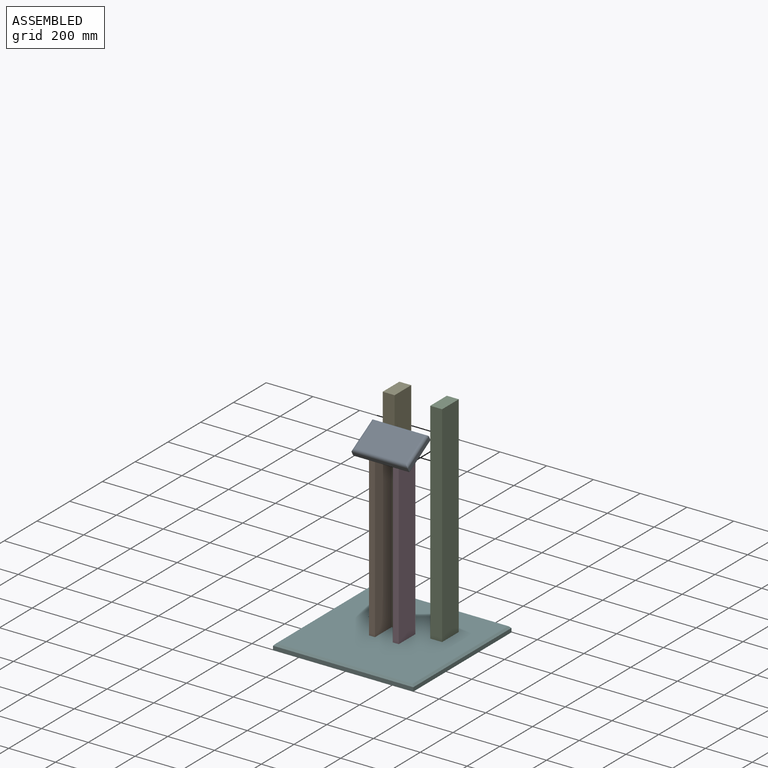
[diagram: assembled view]
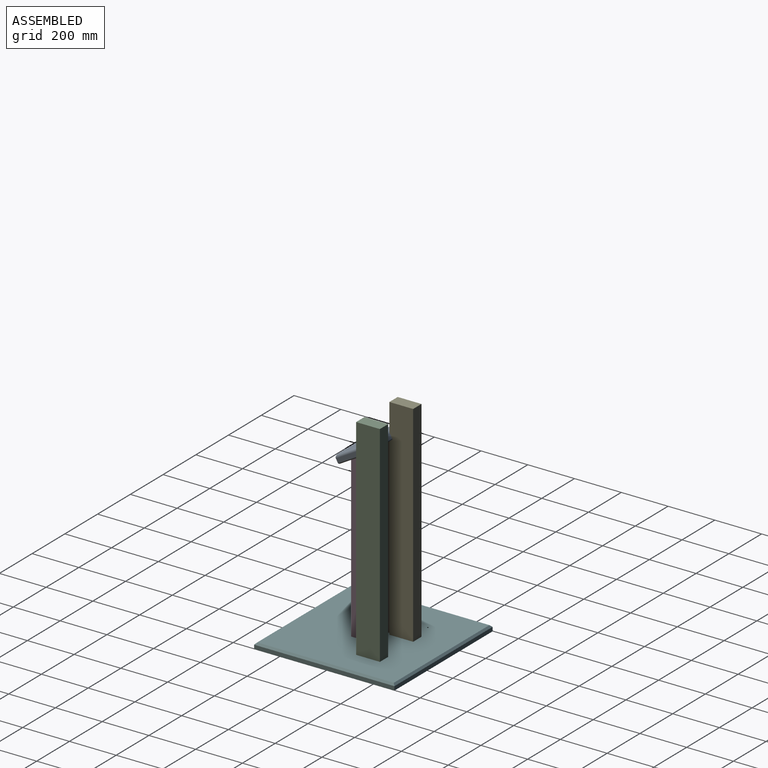
[diagram: assembled view, second angle]
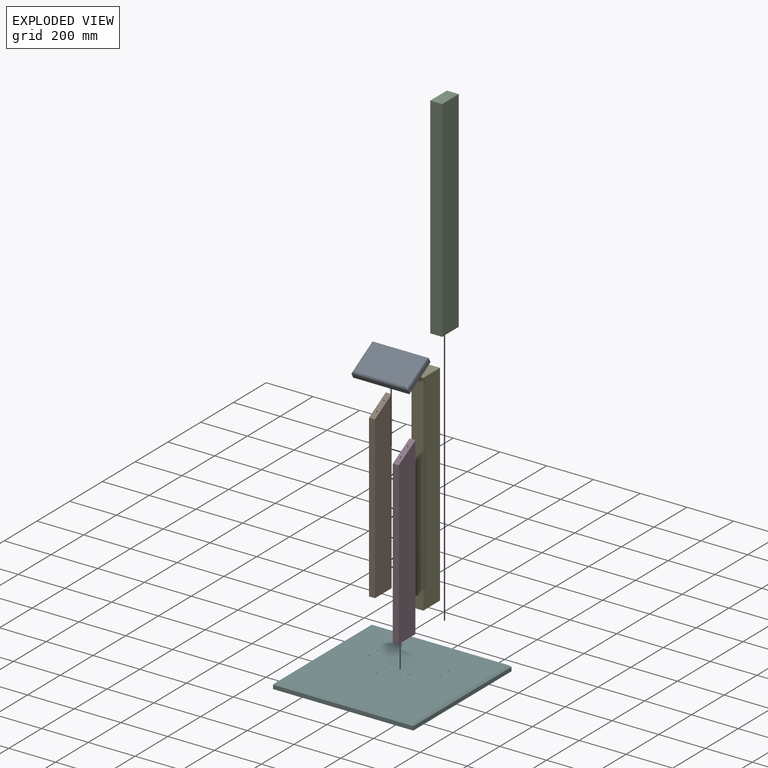
[diagram: exploded view]
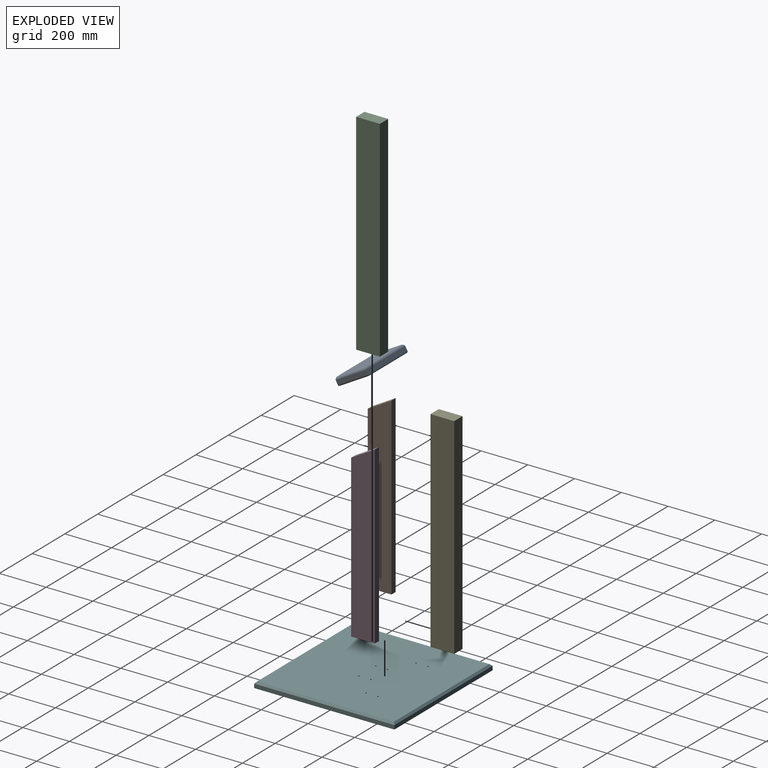
[diagram: exploded view, second angle]
ASSEMBLY  parts=6 mates=9
PART A: 22 faces, bbox 240x150x35 mm
  f0: plane 230x140mm, normal (0,0,-1), area 32086.9mm2, adj f10,f11,f12,f13,f14,f16,f18,f20
  f1: plane 240x18mm, normal (0,-1,0), area 4320mm2, adj f2,f4,f6,f10
  f2: plane 150x18mm, normal (1,0,0), area 2700mm2, adj f1,f3,f7,f11
  f3: plane 240x18mm, normal (0,1,0), area 4320mm2, adj f2,f4,f9,f13
  f4: plane 150x18mm, normal (-1,0,0), area 2700mm2, adj f1,f3,f8,f12
  f5: plane 216x126mm, normal (0,0,1), area 27216mm2, adj f6,f7,f8,f9
  f6: cylinder r=12mm len=240mm, axis (-1,0,0), area 4359.5mm2, adj f1,f5,f7,f8
  f7: cylinder r=12mm len=150mm, axis (0,-1,0), area 2663mm2, adj f2,f5,f6,f9
  f8: cylinder r=12mm len=150mm, axis (0,1,0), area 2663mm2, adj f4,f5,f6,f9
  f9: cylinder r=12mm len=240mm, axis (1,0,0), area 4359.5mm2, adj f3,f5,f7,f8
  f10: cylinder r=5mm len=240mm, axis (1,0,0), area 1856.4mm2, adj f0,f1,f11,f12
  f11: cylinder r=5mm len=150mm, axis (0,1,0), area 1149.6mm2, adj f0,f2,f10,f13
  f12: cylinder r=5mm len=150mm, axis (0,-1,0), area 1149.6mm2, adj f0,f4,f10,f13
  f13: cylinder r=5mm len=240mm, axis (-1,0,0), area 1856.4mm2, adj f0,f3,f11,f12
  f14: cylinder r=3mm len=25mm, axis (0,0,-1), area 471.2mm2, adj f0,f15
  f15: plane 6x6mm, normal (0,0,-1), area 28.3mm2, adj f14
  f16: cylinder r=3mm len=25mm, axis (0,0,-1), area 471.2mm2, adj f0,f17
  f17: plane 6x6mm, normal (0,0,-1), area 28.3mm2, adj f16
  f18: cylinder r=3mm len=25mm, axis (0,0,-1), area 471.2mm2, adj f0,f19
  f19: plane 6x6mm, normal (0,0,-1), area 28.3mm2, adj f18
  f20: cylinder r=3mm len=25mm, axis (0,0,-1), area 471.2mm2, adj f0,f21
  f21: plane 6x6mm, normal (0,0,-1), area 28.3mm2, adj f20
PART B: 14 faces, bbox 101.6x25.4x750 mm
  f0: plane 101.6x25.4mm, normal (0,0,-1), area 2524.1mm2, adj f1,f2,f3,f4,f6,f8
  f1: plane 691.34x25.4mm, normal (-1,0,0), area 17560.1mm2, adj f0,f2,f4,f5
  f2: plane 750x101.6mm, normal (0,-1,0), area 73220.1mm2, adj f0,f1,f3,f5
  f3: plane 750x25.4mm, normal (1,0,0), area 19050mm2, adj f0,f2,f4,f5
  f4: plane 750x101.6mm, normal (0,1,0), area 73220.1mm2, adj f0,f1,f3,f5
  f5: plane 101.6x58.66mm, normal (-0.5,0,0.87), area 2923.3mm2, adj f1,f2,f3,f4,f10,f12
  f6: cylinder r=3mm len=50.4mm, axis (0,0,-1), area 950mm2, adj f0,f7
  f7: plane 6x6mm, normal (0,0,-1), area 28.3mm2, adj f6
  f8: cylinder r=3mm len=50.4mm, axis (0,0,-1), area 950mm2, adj f0,f9
  f9: plane 6x6mm, normal (0,0,-1), area 28.3mm2, adj f8
  f10: cylinder r=3mm len=13.39mm, axis (-0.5,0,0.87), area 226.2mm2, adj f5,f11
  f11: plane 6x5.2mm, normal (-0.5,0,0.87), area 28.3mm2, adj f10
  f12: cylinder r=3mm len=13.39mm, axis (-0.5,0,0.87), area 226.2mm2, adj f5,f13
  f13: plane 6x5.2mm, normal (-0.5,0,0.87), area 28.3mm2, adj f12
PART C: 10 faces, bbox 50.8x101.6x900 mm
  f0: plane 101.6x50.8mm, normal (0,0,-1), area 5104.7mm2, adj f1,f2,f3,f4,f6,f8
  f1: plane 900x50.8mm, normal (0,1,0), area 45720mm2, adj f0,f2,f4,f5
  f2: plane 900x101.6mm, normal (-1,0,0), area 91440mm2, adj f0,f1,f3,f5
  f3: plane 900x50.8mm, normal (0,-1,0), area 45720mm2, adj f0,f2,f4,f5
  f4: plane 900x101.6mm, normal (1,0,0), area 91440mm2, adj f0,f1,f3,f5
  f5: plane 101.6x50.8mm, normal (0,0,1), area 5161.3mm2, adj f1,f2,f3,f4
  f6: cylinder r=3mm len=25mm, axis (0,0,-1), area 471.2mm2, adj f0,f7
  f7: plane 6x6mm, normal (0,0,-1), area 28.3mm2, adj f6
  f8: cylinder r=3mm len=25mm, axis (0,0,-1), area 471.2mm2, adj f0,f9
  f9: plane 6x6mm, normal (0,0,-1), area 28.3mm2, adj f8
PART D: same geometry as B
PART E: same geometry as C
PART F: 18 faces, bbox 600x600x25 mm
  f0: plane 584x584mm, normal (0,0,1), area 340829.8mm2, adj f6,f7,f8,f9,f10,f11,f12,f13
  f1: plane 600x600mm, normal (0,0,-1), area 359773.8mm2, adj f2,f3,f4,f5,f10,f11,f12,f13
  f2: plane 600x17mm, normal (1,0,0), area 10200mm2, adj f1,f3,f5,f6
  f3: plane 600x17mm, normal (0,1,0), area 10200mm2, adj f1,f2,f4,f7
  f4: plane 600x17mm, normal (-1,0,0), area 10200mm2, adj f1,f3,f5,f9
  f5: plane 600x17mm, normal (0,-1,0), area 10200mm2, adj f1,f2,f4,f8
  f6: plane 600x8mm, normal (0.71,0,0.71), area 6697.7mm2, adj f0,f2,f7,f8
  f7: plane 600x8mm, normal (0,0.71,0.71), area 6697.7mm2, adj f0,f3,f6,f9
  f8: plane 600x8mm, normal (0,-0.71,0.71), area 6697.7mm2, adj f0,f5,f6,f9
  f9: plane 600x8mm, normal (-0.71,0,0.71), area 6697.7mm2, adj f0,f4,f7,f8
  f10: cylinder r=3mm len=25mm, axis (0,0,1), area 471.2mm2, adj f0,f1
  f11: cylinder r=3mm len=25mm, axis (0,0,1), area 471.2mm2, adj f0,f1
  f12: cylinder r=3mm len=25mm, axis (0,0,1), area 471.2mm2, adj f0,f1
  f13: cylinder r=3mm len=25mm, axis (0,0,1), area 471.2mm2, adj f0,f1
  f14: cylinder r=3mm len=25mm, axis (0,0,1), area 471.2mm2, adj f0,f1
  f15: cylinder r=3mm len=25mm, axis (0,0,1), area 471.2mm2, adj f0,f1
  f16: cylinder r=3mm len=25mm, axis (0,0,1), area 471.2mm2, adj f0,f1
  f17: cylinder r=3mm len=25mm, axis (0,0,1), area 471.2mm2, adj f0,f1
PLACE A rot(axis=(0,0.26,-0.97),180deg) t=(0,0,745.67)mm
PLACE B rot(axis=(0,0,1),90deg) t=(-50.8,0,25)mm
PLACE C t=(152.4,101.6,25)mm
PLACE D rot(axis=(0,0,1),90deg) t=(50.8,0,25)mm
PLACE E t=(-50.8,101.6,25)mm
PLACE F rot(axis=(0,0,1),90deg) t=(0,0,0)mm fixed
MATE cylindrical A.f18 <-> B.f12  axis (0,0.5,-0.87) through (-50.8,22,758.37)mm
MATE planar A.f0 <-> D.f5  axis (0,0.5,-0.87) through (0,0,745.67)mm
MATE cylindrical F.f10 <-> B.f8  axis (0,0,1) through (-50.8,25.4,25)mm
MATE cylindrical F.f14 <-> C.f8  axis (0,0,-1) through (152.4,76.2,0)mm
MATE planar C.f0 <-> F.f0  axis (0,0,-1) through (152.4,101.6,25)mm
MATE planar B.f0 <-> F.f0  axis (0,0,-1) through (-63.5,0,25)mm
MATE cylindrical B.f6 <-> F.f13  axis (0,0,-1) through (-50.8,-25.4,25)mm
MATE cylindrical A.f20 <-> D.f10  axis (0,0.5,-0.87) through (50.8,-22,732.97)mm
MATE cylindrical C.f6 <-> F.f17  axis (0,0,-1) through (152.4,127,25)mm
